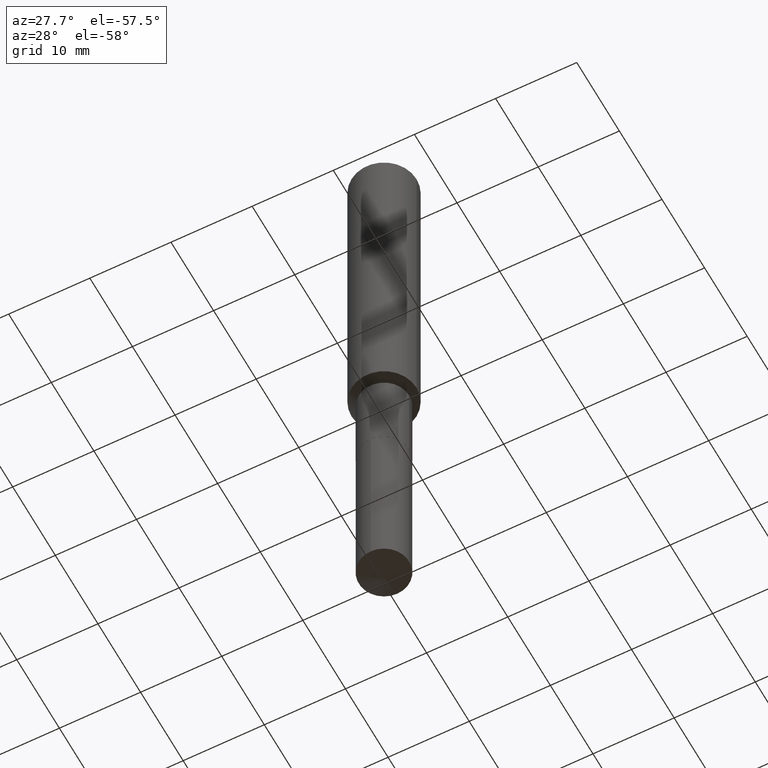
[diagram: clean part render]
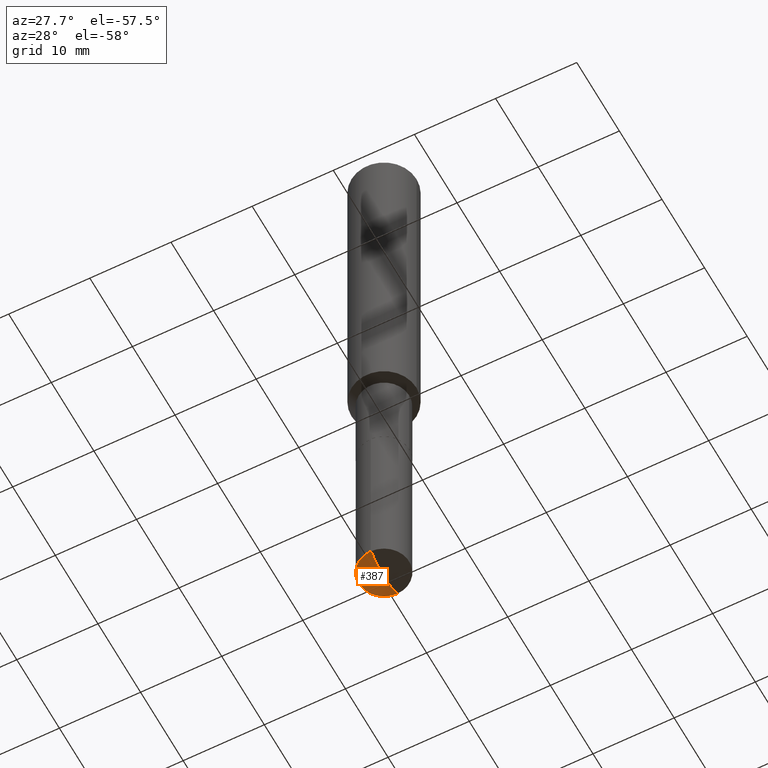
[diagram: same view with one face highlighted and labeled with its STEP entity id]
A machine part, auxiliary view. The second image highlights one B-rep face of the part: STEP entity #387.
In plain terms, the highlighted conical surface has half-angle 68.5 deg.
Its self-contained STEP definition (entity closure, byte-faithful):
#14 = DIRECTION ( 'NONE',  ( -6.497071151882123780E-15, -0.9304175679820252398, 0.3665012267242951371 ) ) ;
#69 = ORIENTED_EDGE ( 'NONE', *, *, #242, .F. ) ;
#90 = LINE ( 'NONE', #321, #255 ) ;
#93 = EDGE_CURVE ( 'NONE', #156, #116, #90, .T. ) ;
#105 = ORIENTED_EDGE ( 'NONE', *, *, #140, .F. ) ;
#116 = VERTEX_POINT ( 'NONE', #162 ) ;
#138 = FACE_OUTER_BOUND ( 'NONE', #238, .T. ) ;
#140 = EDGE_CURVE ( 'NONE', #156, #233, #230, .T. ) ;
#143 = CARTESIAN_POINT ( 'NONE',  ( 8.672174089952771606E-16, 0.1220499999999893059, -3.062123226451197500 ) ) ;
#156 = VERTEX_POINT ( 'NONE', #409 ) ;
#162 = CARTESIAN_POINT ( 'NONE',  ( -8.522705948115337675E-16, -0.1220500000000106916, -3.062123226451196611 ) ) ;
#230 = LINE ( 'NONE', #315, #411 ) ;
#233 = VERTEX_POINT ( 'NONE', #143 ) ;
#238 = EDGE_LOOP ( 'NONE', ( #105, #490, #69 ) ) ;
#241 = DIRECTION ( 'NONE',  ( 6.611014441532073689E-15, 0.9304175679820279043, 0.3665012267242886423 ) ) ;
#242 = EDGE_CURVE ( 'NONE', #233, #116, #297, .T. ) ;
#245 = AXIS2_PLACEMENT_3D ( 'NONE', #381, #435, #369 ) ;
#255 = VECTOR ( 'NONE', #14, 39.37007874015748854 ) ;
#291 = DIRECTION ( 'NONE',  ( -6.982962677686265922E-15, -1.000000000000000000, 4.476604659834925490E-15 ) ) ;
#297 = CIRCLE ( 'NONE', #391, 0.1220500000000000057 ) ;
#315 = CARTESIAN_POINT ( 'NONE',  ( 7.606082573554659811E-29, -1.085894764032567561E-14, -3.110199999999999854 ) ) ;
#318 = CONICAL_SURFACE ( 'NONE', #245, 99.94676754584057221, 1.195550537616121511 ) ;
#321 = CARTESIAN_POINT ( 'NONE',  ( 7.605438617266735127E-29, -1.085986180622584034E-14, -3.110199999999999854 ) ) ;
#369 = DIRECTION ( 'NONE',  ( -6.982962677686265922E-15, -1.000000000000000000, 3.498627837349983318E-15 ) ) ;
#381 = CARTESIAN_POINT ( 'NONE',  ( -8.866673825358101725E-28, 1.266088013143874858E-13, 36.25987874015748247 ) ) ;
#387 = ADVANCED_FACE ( 'NONE', ( #138 ), #318, .T. ) ;
#391 = AXIS2_PLACEMENT_3D ( 'NONE', #401, #483, #291 ) ;
#401 = CARTESIAN_POINT ( 'NONE',  ( 7.488194633398660145E-29, -1.069153541685520385E-14, -3.062123226451197056 ) ) ;
#409 = CARTESIAN_POINT ( 'NONE',  ( 7.605438617266735127E-29, -1.085986180622584192E-14, -3.110199999999999854 ) ) ;
#411 = VECTOR ( 'NONE', #241, 39.37007874015748143 ) ;
#435 = DIRECTION ( 'NONE',  ( -2.445321399674212677E-29, 3.491692433356646244E-15, 1.000000000000000000 ) ) ;
#483 = DIRECTION ( 'NONE',  ( -2.445321399674212677E-29, 3.491692433356646244E-15, 1.000000000000000000 ) ) ;
#490 = ORIENTED_EDGE ( 'NONE', *, *, #93, .T. ) ;